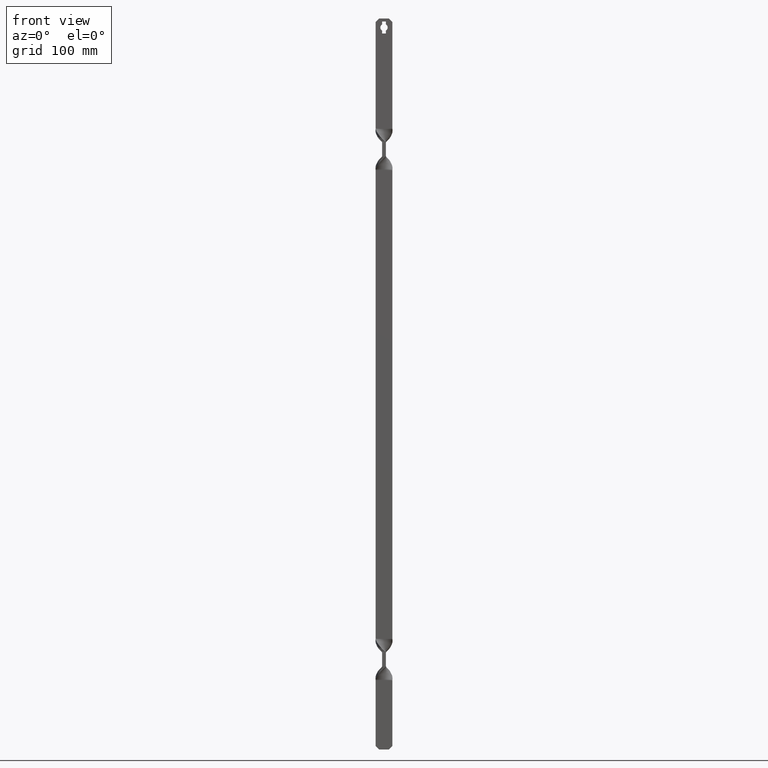
[diagram: clean part render]
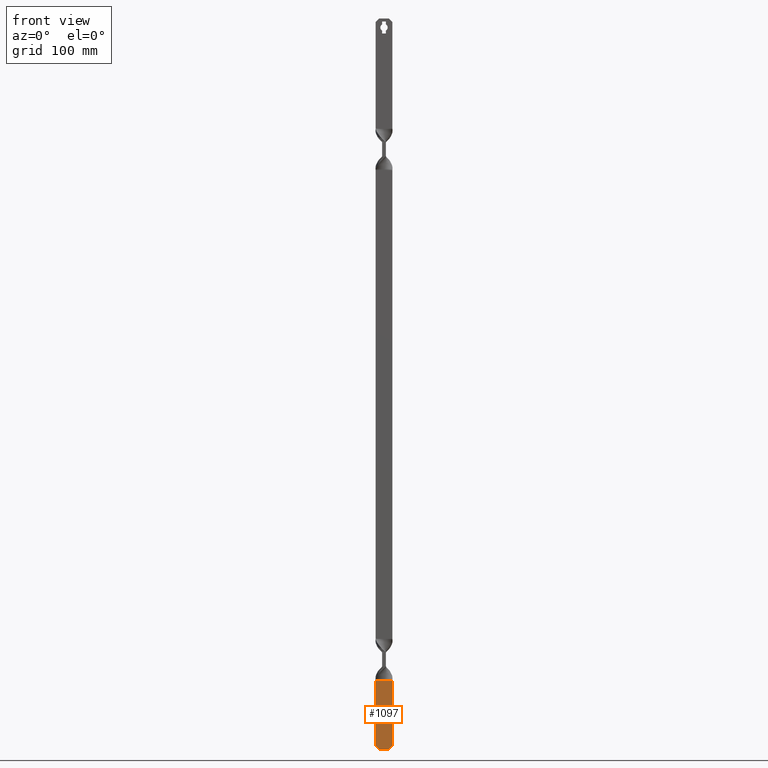
[diagram: same view with one face highlighted and labeled with its STEP entity id]
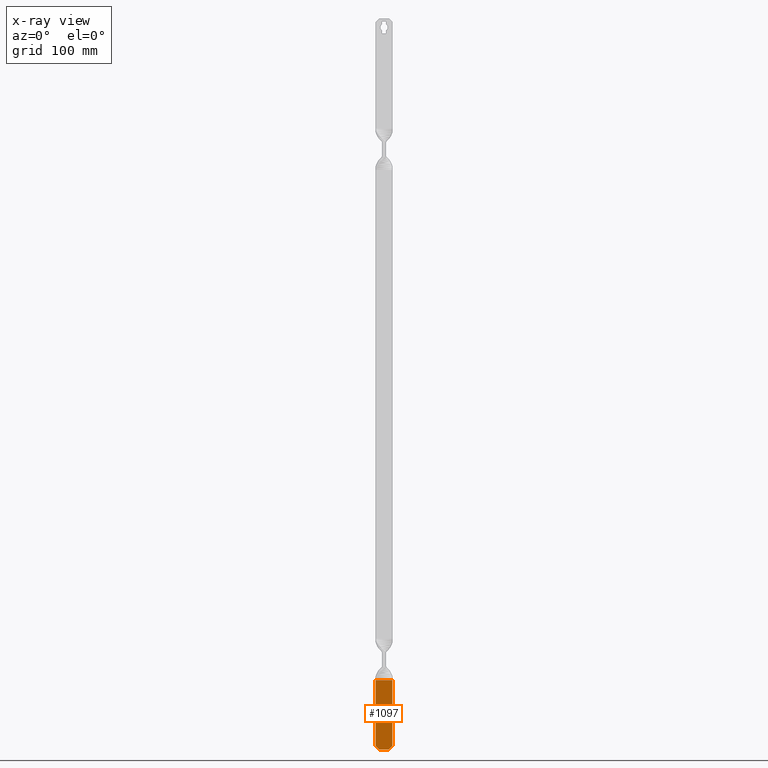
[diagram: x-ray of the same camera — body ghosted, the highlighted face saturated]
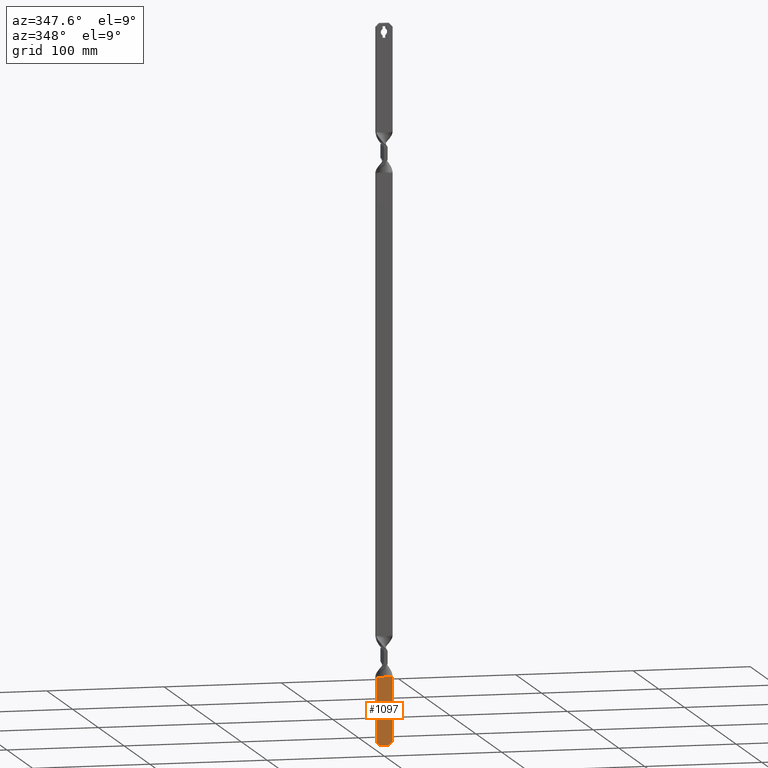
[diagram: same view with one face highlighted and labeled with its STEP entity id]
A machine part, front view. The second image highlights one B-rep face of the part: STEP entity #1097.
The next image is the same camera in x-ray: the body ghosted, the highlighted face saturated — about 0% of this face is hidden behind the body in this view.
A second angle (auxiliary view) of the same face is appended — the face is thin or edge-on in the first view.
In plain terms, the highlighted face is a freeform B-spline surface patch.
Its self-contained STEP definition (entity closure, byte-faithful):
#544=CARTESIAN_POINT('',(-4.000000000000116,-3.248195E-014,0.0));
#545=VERTEX_POINT('',#544);
#551=CARTESIAN_POINT('',(-7.000000000000091,-5.684342E-014,2.999999999999920));
#552=VERTEX_POINT('',#551);
#553=CARTESIAN_POINT('',(-7.000000000000091,-5.684342E-014,2.999999999999920));
#554=CARTESIAN_POINT('',(-4.000000000000116,-3.248195E-014,0.0));
#555=QUASI_UNIFORM_CURVE('',1,(#553,#554),.UNSPECIFIED.,.F.,.U.);
#556=EDGE_CURVE('',#552,#545,#555,.T.);
#571=CARTESIAN_POINT('',(4.0,3.248195E-014,5.551115E-014));
#572=VERTEX_POINT('',#571);
#573=CARTESIAN_POINT('',(6.999999999999861,5.684342E-014,2.999999999999945));
#574=VERTEX_POINT('',#573);
#575=CARTESIAN_POINT('',(4.0,3.248195E-014,5.551115E-014));
#576=CARTESIAN_POINT('',(6.999999999999861,5.684342E-014,2.999999999999945));
#577=QUASI_UNIFORM_CURVE('',1,(#575,#576),.UNSPECIFIED.,.F.,.U.);
#578=EDGE_CURVE('',#572,#574,#577,.T.);
#997=CARTESIAN_POINT('',(-4.000000000000116,-3.248195E-014,0.0));
#998=CARTESIAN_POINT('',(4.0,3.248195E-014,5.551115E-014));
#999=QUASI_UNIFORM_CURVE('',1,(#997,#998),.UNSPECIFIED.,.F.,.U.);
#1000=EDGE_CURVE('',#545,#572,#999,.T.);
#1019=CARTESIAN_POINT('',(-7.000000000000110,-5.681219E-014,57.500000000004597));
#1020=VERTEX_POINT('',#1019);
#1021=CARTESIAN_POINT('',(-7.000000000000091,-5.684342E-014,2.999999999999920));
#1022=CARTESIAN_POINT('',(-7.000000000000110,-5.681219E-014,57.500000000004597));
#1023=QUASI_UNIFORM_CURVE('',1,(#1021,#1022),.UNSPECIFIED.,.F.,.U.);
#1024=EDGE_CURVE('',#552,#1020,#1023,.T.);
#1063=CARTESIAN_POINT('',(6.999999999999890,5.684342E-014,57.500000000000000));
#1064=VERTEX_POINT('',#1063);
#1065=CARTESIAN_POINT('',(6.999999999999861,5.684342E-014,2.999999999999945));
#1066=CARTESIAN_POINT('',(6.999999999999890,5.684342E-014,57.500000000000000));
#1067=QUASI_UNIFORM_CURVE('',1,(#1065,#1066),.UNSPECIFIED.,.F.,.U.);
#1068=EDGE_CURVE('',#574,#1064,#1067,.T.);
#1080=CARTESIAN_POINT('',(-7.699299972865394,-5.684342E-014,-2.872124888554069));
#1081=CARTESIAN_POINT('',(7.699300348374436,-5.684342E-014,-2.872124888554069));
#1082=CARTESIAN_POINT('',(-7.699299972865394,-5.684342E-014,60.372126430828857));
#1083=CARTESIAN_POINT('',(7.699300348374435,-5.684342E-014,60.372126430828857));
#1084=B_SPLINE_SURFACE_WITH_KNOTS('',1,1,((#1080,#1082),(#1081,#1083)),.UNSPECIFIED.,.F.,.F.,.U.,(2,2),(2,2),(0.0,15.398600321239829),(0.0,63.244251319382933),.UNSPECIFIED.);
#1085=ORIENTED_EDGE('',*,*,#1000,.T.);
#1086=ORIENTED_EDGE('',*,*,#578,.T.);
#1087=ORIENTED_EDGE('',*,*,#1068,.T.);
#1088=CARTESIAN_POINT('',(-7.000000000000110,-5.681219E-014,57.500000000004597));
#1089=CARTESIAN_POINT('',(6.999999999999890,5.684342E-014,57.500000000000000));
#1090=QUASI_UNIFORM_CURVE('',1,(#1088,#1089),.UNSPECIFIED.,.F.,.U.);
#1091=EDGE_CURVE('',#1020,#1064,#1090,.T.);
#1092=ORIENTED_EDGE('',*,*,#1091,.F.);
#1093=ORIENTED_EDGE('',*,*,#1024,.F.);
#1094=ORIENTED_EDGE('',*,*,#556,.T.);
#1095=EDGE_LOOP('',(#1085,#1086,#1087,#1092,#1093,#1094));
#1096=FACE_OUTER_BOUND('',#1095,.T.);
#1097=ADVANCED_FACE('',(#1096),#1084,.T.);